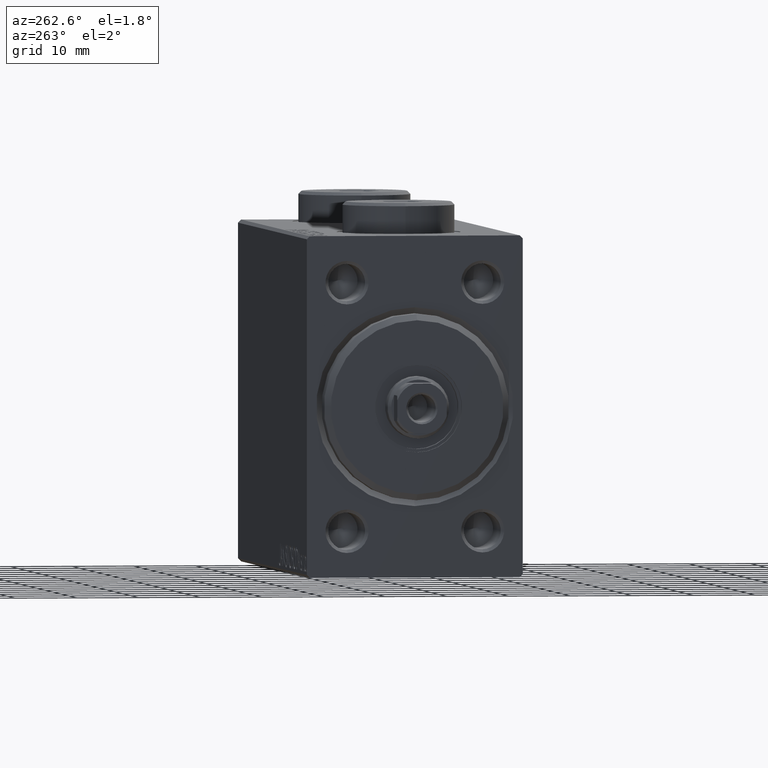
[diagram: clean part render]
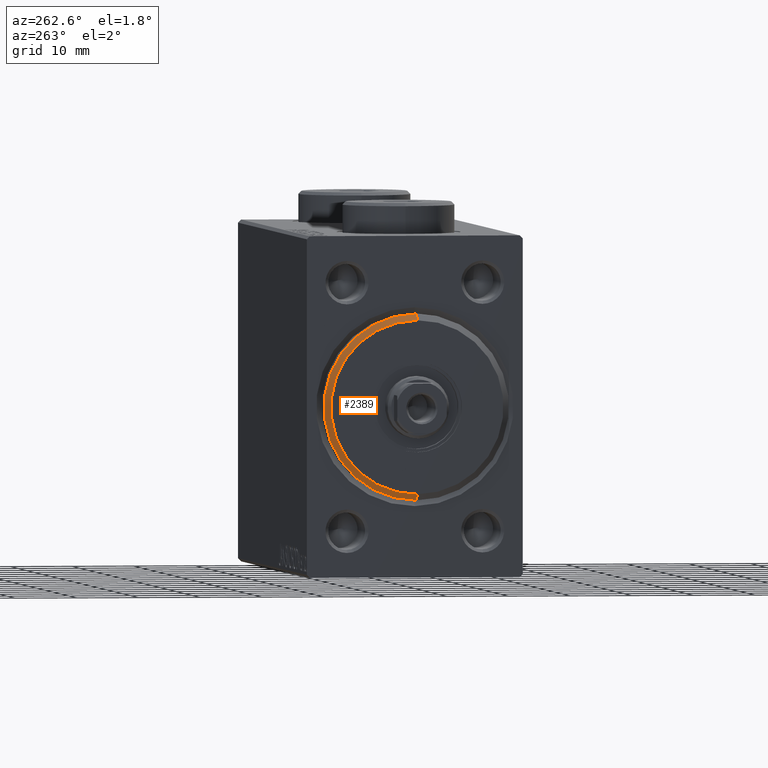
[diagram: same view with one face highlighted and labeled with its STEP entity id]
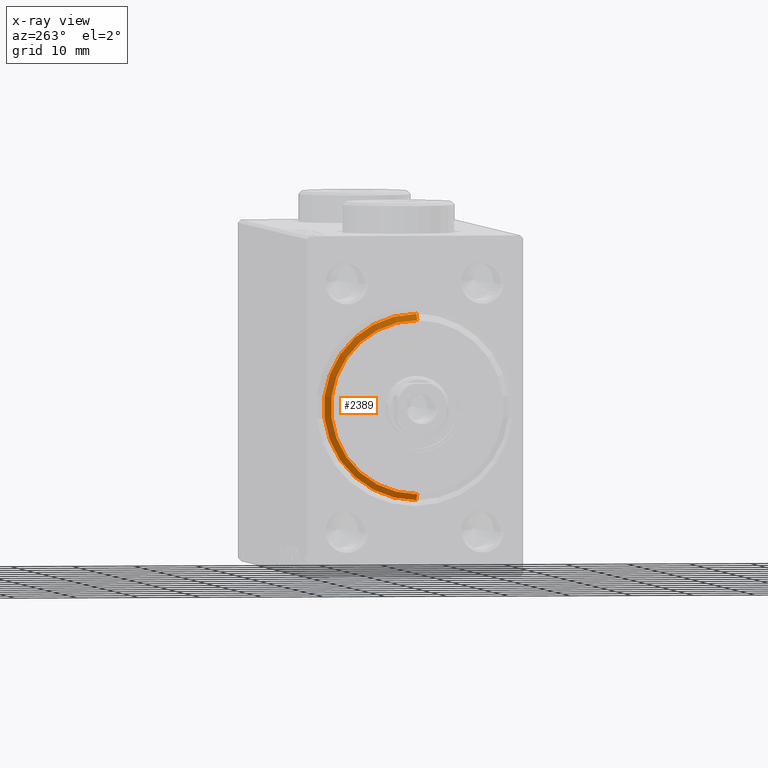
[diagram: x-ray of the same camera — body ghosted, the highlighted face saturated]
A machine part, auxiliary view. The second image highlights one B-rep face of the part: STEP entity #2389.
The next image is the same camera in x-ray: the body ghosted, the highlighted face saturated — about 0% of this face is hidden behind the body in this view.
In plain terms, the highlighted conical surface has half-angle 45 deg.
Its self-contained STEP definition (entity closure, byte-faithful):
#532 = VERTEX_POINT ( 'NONE', #14077 ) ;
#656 = EDGE_CURVE ( 'NONE', #38410, #11733, #36157, .T. ) ;
#2389 = ADVANCED_FACE ( 'NONE', ( #5666 ), #36365, .T. ) ;
#2547 = VECTOR ( 'NONE', #25307, 999.9999999999998863 ) ;
#2661 = CARTESIAN_POINT ( 'NONE',  ( 3.000000000000000000, 0.000000000000000000, 13.99999999999999645 ) ) ;
#3279 = CIRCLE ( 'NONE', #28954, 15.00000000000000000 ) ;
#4119 = CARTESIAN_POINT ( 'NONE',  ( 3.000000000000000000, 1.775737858763662015E-15, -13.99999999999999645 ) ) ;
#5666 = FACE_OUTER_BOUND ( 'NONE', #26378, .T. ) ;
#9829 = DIRECTION ( 'NONE',  ( 0.000000000000000000, 0.000000000000000000, -1.000000000000000000 ) ) ;
#10014 = CARTESIAN_POINT ( 'NONE',  ( 1.999999999999995781, 1.836970198721029589E-15, -15.00000000000000000 ) ) ;
#11720 = EDGE_CURVE ( 'NONE', #532, #37449, #41558, .T. ) ;
#11733 = VERTEX_POINT ( 'NONE', #10014 ) ;
#12346 = CARTESIAN_POINT ( 'NONE',  ( 3.000000000000000000, 0.000000000000000000, 0.000000000000000000 ) ) ;
#12902 = EDGE_CURVE ( 'NONE', #532, #38410, #16817, .T. ) ;
#14077 = CARTESIAN_POINT ( 'NONE',  ( 3.000000000000000000, 0.000000000000000000, 13.99999999999999645 ) ) ;
#16446 = DIRECTION ( 'NONE',  ( -0.7071067811865482389, 0.000000000000000000, 0.7071067811865469066 ) ) ;
#16518 = AXIS2_PLACEMENT_3D ( 'NONE', #12346, #19677, #33739 ) ;
#16629 = DIRECTION ( 'NONE',  ( 1.000000000000000000, -0.000000000000000000, 0.000000000000000000 ) ) ;
#16817 = CIRCLE ( 'NONE', #21195, 13.99999999999999645 ) ;
#17445 = ORIENTED_EDGE ( 'NONE', *, *, #12902, .F. ) ;
#19677 = DIRECTION ( 'NONE',  ( -1.000000000000000000, 0.000000000000000000, 0.000000000000000000 ) ) ;
#21195 = AXIS2_PLACEMENT_3D ( 'NONE', #41061, #16629, #30664 ) ;
#25307 = DIRECTION ( 'NONE',  ( -0.7071067811865482389, 8.659560562354926695E-17, -0.7071067811865469066 ) ) ;
#26378 = EDGE_LOOP ( 'NONE', ( #30036, #17445, #42498, #27953 ) ) ;
#27349 = CARTESIAN_POINT ( 'NONE',  ( 1.999999999999995781, 0.000000000000000000, 15.00000000000000000 ) ) ;
#27953 = ORIENTED_EDGE ( 'NONE', *, *, #32895, .F. ) ;
#28954 = AXIS2_PLACEMENT_3D ( 'NONE', #31887, #42062, #9829 ) ;
#30036 = ORIENTED_EDGE ( 'NONE', *, *, #656, .F. ) ;
#30664 = DIRECTION ( 'NONE',  ( 0.000000000000000000, 0.000000000000000000, -1.000000000000000000 ) ) ;
#31887 = CARTESIAN_POINT ( 'NONE',  ( 1.999999999999995781, 0.000000000000000000, 0.000000000000000000 ) ) ;
#32895 = EDGE_CURVE ( 'NONE', #11733, #37449, #3279, .T. ) ;
#32920 = CARTESIAN_POINT ( 'NONE',  ( 3.000000000000000000, 1.714505518806294244E-15, -13.99999999999999645 ) ) ;
#33739 = DIRECTION ( 'NONE',  ( 0.000000000000000000, 0.000000000000000000, 1.000000000000000000 ) ) ;
#36157 = LINE ( 'NONE', #32920, #2547 ) ;
#36365 = CONICAL_SURFACE ( 'NONE', #16518, 13.99999999999999645, 0.7853981633974473908 ) ;
#37449 = VERTEX_POINT ( 'NONE', #27349 ) ;
#38410 = VERTEX_POINT ( 'NONE', #4119 ) ;
#40339 = VECTOR ( 'NONE', #16446, 999.9999999999998863 ) ;
#41061 = CARTESIAN_POINT ( 'NONE',  ( 3.000000000000000000, 0.000000000000000000, 0.000000000000000000 ) ) ;
#41558 = LINE ( 'NONE', #2661, #40339 ) ;
#42062 = DIRECTION ( 'NONE',  ( -1.000000000000000000, 0.000000000000000000, 0.000000000000000000 ) ) ;
#42498 = ORIENTED_EDGE ( 'NONE', *, *, #11720, .T. ) ;